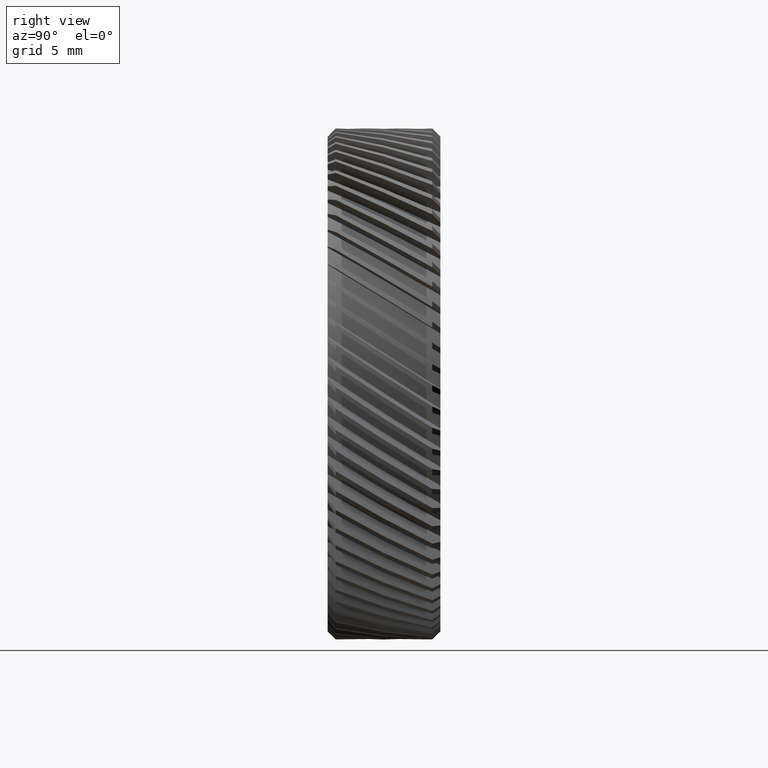
[diagram: clean part render]
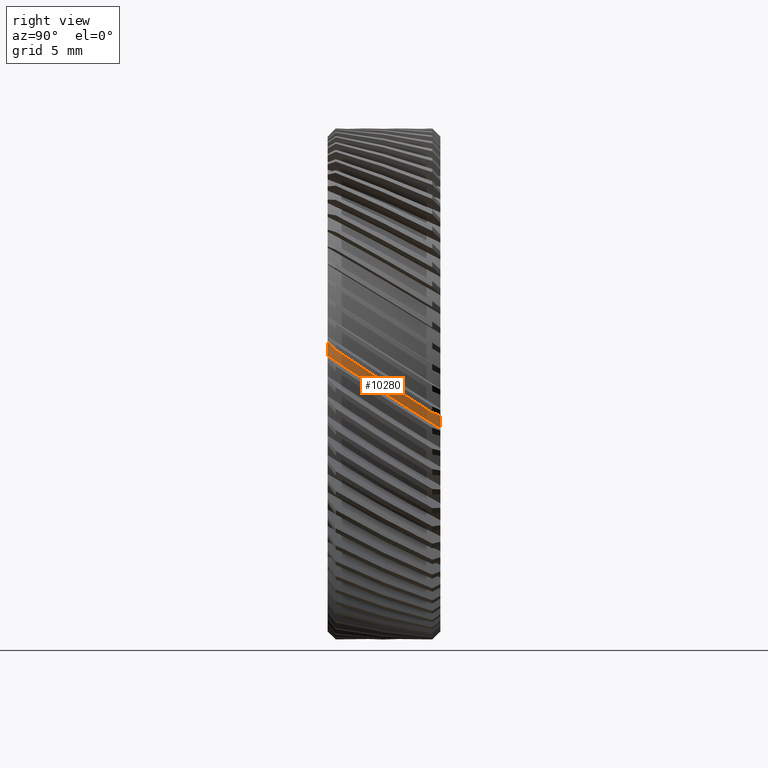
[diagram: same view with one face highlighted and labeled with its STEP entity id]
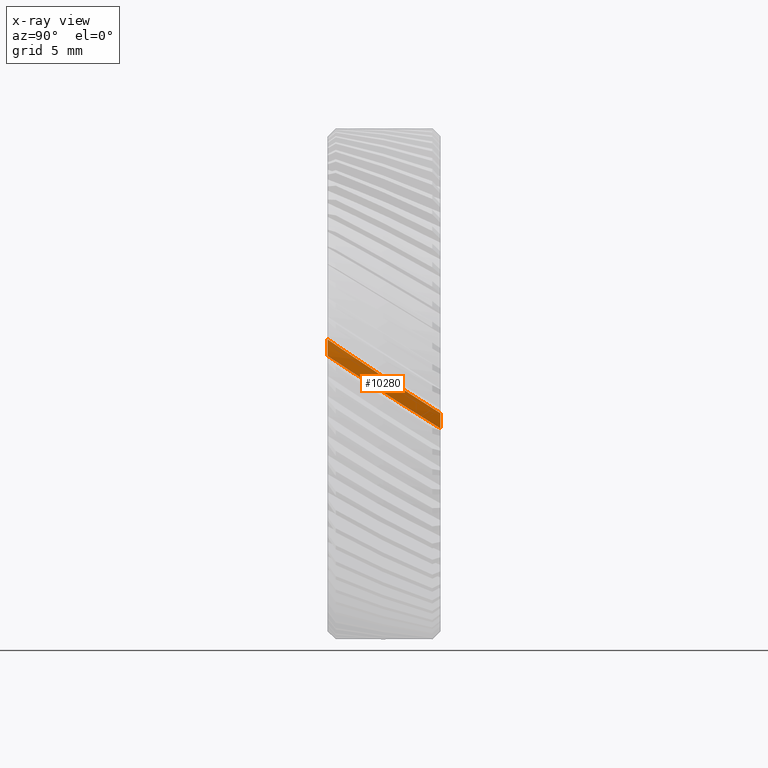
[diagram: x-ray of the same camera — body ghosted, the highlighted face saturated]
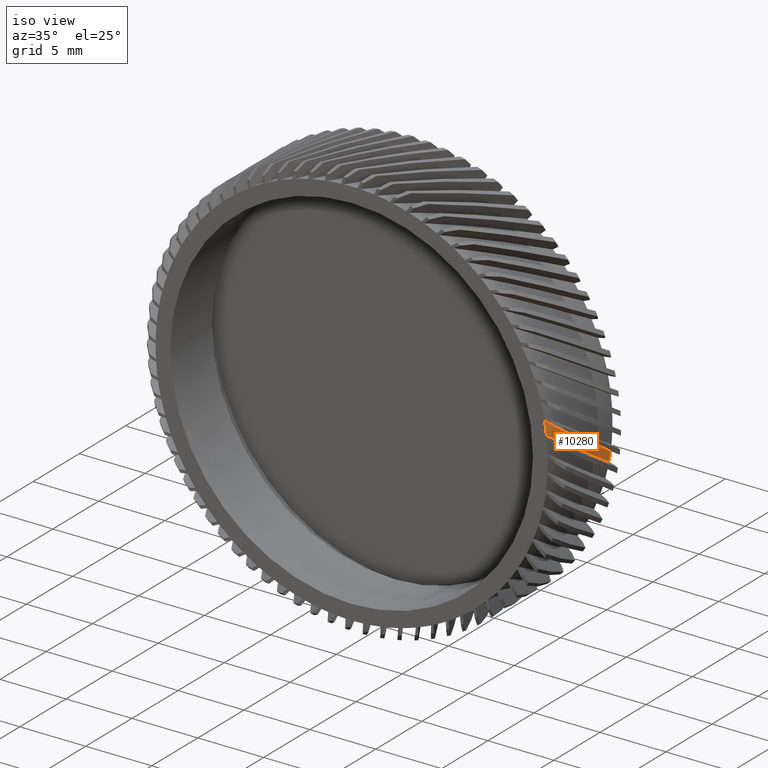
[diagram: same view with one face highlighted and labeled with its STEP entity id]
A machine part, right view. The second image highlights one B-rep face of the part: STEP entity #10280.
The next image is the same camera in x-ray: the body ghosted, the highlighted face saturated — about 0% of this face is hidden behind the body in this view.
A second angle (iso view) of the same face is appended — the face is thin or edge-on in the first view.
In plain terms, the highlighted cylindrical surface (partial cylindrical patch) has radius 14.875 mm, axis along (0, 1, 0).
Its self-contained STEP definition (entity closure, byte-faithful):
#89 = DIRECTION ( 'NONE',  ( -0.0000000000000000000, -1.000000000000000000, -0.0000000000000000000 ) ) ;
#533 = CARTESIAN_POINT ( 'NONE',  ( 0.0000000000000000000, -6.330884482231915900, -0.0000000000000000000 ) ) ;
#593 = CARTESIAN_POINT ( 'NONE',  ( 14.76362738020570500, -6.330884482231919500, -1.816846602892131500 ) ) ;
#778 = EDGE_CURVE ( 'NONE', #12523, #14703, #16031, .T. ) ;
#956 = AXIS2_PLACEMENT_3D ( 'NONE', #11332, #89, #6355 ) ;
#2973 = EDGE_CURVE ( 'NONE', #12523, #13550, #11108, .T. ) ;
#3189 = EDGE_CURVE ( 'NONE', #15525, #13550, #16240, .T. ) ;
#4908 = FACE_OUTER_BOUND ( 'NONE', #9399, .T. ) ;
#5064 = CARTESIAN_POINT ( 'NONE',  ( 14.61757894031330500, -6.330884482231915900, -2.755360398152888500 ) ) ;
#5342 = DIRECTION ( 'NONE',  ( -0.0000000000000000000, 1.000000000000000000, 0.0000000000000000000 ) ) ;
#6302 = CYLINDRICAL_SURFACE ( 'NONE', #12144, 14.87500000000000500 ) ;
#6355 = DIRECTION ( 'NONE',  ( 0.9631625667976571000, 0.0000000000000000000, -0.2689198206152696400 ) ) ;
#6663 = ORIENTED_EDGE ( 'NONE', *, *, #778, .T. ) ;
#6831 = CARTESIAN_POINT ( 'NONE',  ( 14.95170671482631700, -8.768720868185248200, -0.2885209809956213500 ) ) ;
#7036 = CARTESIAN_POINT ( 'NONE',  ( 14.61757894031330500, -6.330884482231915900, -2.755360398152888500 ) ) ;
#7365 = CARTESIAN_POINT ( 'NONE',  ( 14.61602697261732700, -13.33088448223191400, 2.763581107136728700 ) ) ;
#7388 = ORIENTED_EDGE ( 'NONE', *, *, #2973, .F. ) ;
#8893 = CARTESIAN_POINT ( 'NONE',  ( 14.94963382849952000, -11.09272791176794500, 0.2397911170443246500 ) ) ;
#9047 = CARTESIAN_POINT ( 'NONE',  ( 0.0000000000000000000, 46.02073106022621100, 0.0000000000000000000 ) ) ;
#9399 = EDGE_LOOP ( 'NONE', ( #6663, #16282, #10656, #7388 ) ) ;
#10184 = DIRECTION ( 'NONE',  ( 0.0000000000000000000, 1.000000000000000000, 0.0000000000000000000 ) ) ;
#10280 = ADVANCED_FACE ( 'NONE', ( #4908 ), #6302, .T. ) ;
#10336 = CARTESIAN_POINT ( 'NONE',  ( 14.77282107237852300, -13.33088448223191600, 1.740512155513229000 ) ) ;
#10656 = ORIENTED_EDGE ( 'NONE', *, *, #3189, .T. ) ;
#11108 = CIRCLE ( 'NONE', #956, 14.87500000000000500 ) ;
#11332 = CARTESIAN_POINT ( 'NONE',  ( 0.0000000000000000000, -13.33088448223191600, -0.0000000000000000000 ) ) ;
#12144 = AXIS2_PLACEMENT_3D ( 'NONE', #9047, #10184, #12639 ) ;
#12255 = CARTESIAN_POINT ( 'NONE',  ( 14.90211193706780400, -11.12077022890075600, 1.250535028601091000 ) ) ;
#12523 = VERTEX_POINT ( 'NONE', #16247 ) ;
#12639 = DIRECTION ( 'NONE',  ( 0.9631625667976571000, 0.0000000000000000000, -0.2689198206152696400 ) ) ;
#12790 = CARTESIAN_POINT ( 'NONE',  ( 14.89748670456583000, -8.741369664623690000, -1.270409883980294400 ) ) ;
#13550 = VERTEX_POINT ( 'NONE', #7365 ) ;
#14235 = EDGE_CURVE ( 'NONE', #15525, #14703, #14877, .T. ) ;
#14450 = CARTESIAN_POINT ( 'NONE',  ( 14.61602697261732700, -13.33088448223191400, 2.763581107136728700 ) ) ;
#14703 = VERTEX_POINT ( 'NONE', #7036 ) ;
#14877 = CIRCLE ( 'NONE', #15394, 14.87500000000000500 ) ;
#15394 = AXIS2_PLACEMENT_3D ( 'NONE', #533, #5342, #15422 ) ;
#15422 = DIRECTION ( 'NONE',  ( -0.9631625667976571000, 0.0000000000000000000, 0.2689198206152696400 ) ) ;
#15525 = VERTEX_POINT ( 'NONE', #16042 ) ;
#16031 =( BOUNDED_CURVE ( )  B_SPLINE_CURVE ( 3, ( #10336, #8893, #12790, #5064 ),
 .UNSPECIFIED., .F., .F. ) 
 B_SPLINE_CURVE_WITH_KNOTS ( ( 4, 4 ),
 ( 4.322839739403873300, 4.626427912860425100 ),
 .UNSPECIFIED. ) 
 CURVE ( )  GEOMETRIC_REPRESENTATION_ITEM ( )  RATIONAL_B_SPLINE_CURVE ( ( 1.000000000000000000, 0.9923342545387088300, 0.9923342545387088300, 1.000000000000000000 ) ) 
 REPRESENTATION_ITEM ( '' )  );
#16042 = CARTESIAN_POINT ( 'NONE',  ( 14.76362738020570500, -6.330884482231919500, -1.816846602892131500 ) ) ;
#16240 =( BOUNDED_CURVE ( )  B_SPLINE_CURVE ( 3, ( #593, #6831, #12255, #14450 ),
 .UNSPECIFIED., .F., .F. ) 
 B_SPLINE_CURVE_WITH_KNOTS ( ( 4, 4 ),
 ( 1.720620993473467500, 2.029940400860878600 ),
 .UNSPECIFIED. ) 
 CURVE ( )  GEOMETRIC_REPRESENTATION_ITEM ( )  RATIONAL_B_SPLINE_CURVE ( ( 1.000000000000000000, 0.9920426723627562300, 0.9920426723627562300, 1.000000000000000000 ) ) 
 REPRESENTATION_ITEM ( '' )  );
#16247 = CARTESIAN_POINT ( 'NONE',  ( 14.77282107237852300, -13.33088448223191600, 1.740512155513229000 ) ) ;
#16282 = ORIENTED_EDGE ( 'NONE', *, *, #14235, .F. ) ;